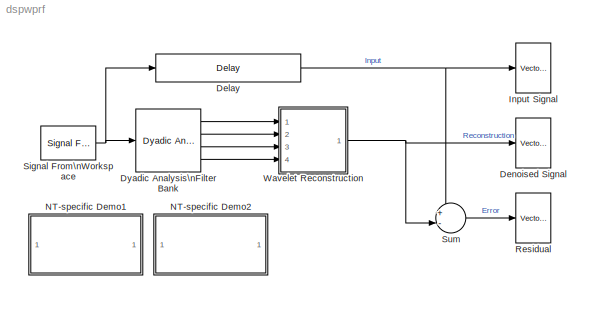
MODEL dspwprf
KIND model
CONFIG AbsTol = auto
CONFIG FixedStep = auto
CONFIG MaxStep = auto
CONFIG MinStep = auto
CONFIG PreLoadFcn = load dspwlets;
CONFIG RelTol = 1e-3
CONFIG Solver = FixedStepDiscrete
CONFIG SolverMode = Auto
CONFIG StartTime = 0.0
CONFIG StopTime = 1024
BLOCK [Reference] Delay  REF=dspsigops/Delay
  Ports = [1, 1]
  SourceBlock = dspsigops/Delay
  SourceType = Delay
  delay = 7*(length(lod)-1)
  dif_ic_for_ch = off
  dif_ic_for_dly = off
  dly_unit = Samples
  ic = 0
  ic_detail = on
  reset_popup = None
BLOCK [Reference] Denoised Signal  REF=dspsnks4/Vector\nScope
  AxisGrid = on
  AxisLegend = off
  AxisProperties = off
  AxisZoom = off
  DisplayProperties = off
  Domain = Time
  FigPos = [720 345 430 200]
  FrameNumber = on
  HorizSpan = 15
  InheritXIncr = on
  LineProperties = off
  Memory = off
  OpenScopeAtSimStart = on
  OpenScopeImmediately = off
  Ports = [1]
  ScopeProperties = on
  SourceBlock = dspsnks4/Vector\nScope
  SourceType = Vector Scope
  XIncr = 1
  XLabel = Samples
  XRange = [0...Fs/2]
  XUnits = Hertz
  YLabel = Amplitude
  YMax = 10
  YMin = -10
  YUnits = dB
BLOCK [Reference] Dyadic Analysis\nFilter Bank  REF=dspmlti4/Dyadic Analysis\nFilter Bank
  HPF = hid
  LPF = lod
  NumLevels = 3
  OrdRec_ordDec = [1 / 1]
  Order = 2
  Output = Multiple ports
  Ports = [1, 4]
  SourceBlock = dspmlti4/Dyadic Analysis\nFilter Bank
  SourceType = Dyadic Analysis Filter Bank
  Wname = User-defined
  tree = Asymmetric
BLOCK [Reference] Input Signal  REF=dspsnks4/Vector\nScope
  AxisGrid = on
  AxisLegend = off
  AxisProperties = off
  AxisZoom = off
  DisplayProperties = off
  Domain = Time
  FigPos = [720 590 430 200]
  FrameNumber = on
  HorizSpan = 15
  InheritXIncr = on
  LineProperties = off
  Memory = off
  OpenScopeAtSimStart = on
  OpenScopeImmediately = off
  Ports = [1]
  ScopeProperties = on
  SourceBlock = dspsnks4/Vector\nScope
  SourceType = Vector Scope
  XIncr = 1
  XLabel = Samples
  XRange = [0...Fs/2]
  XUnits = Hertz
  YLabel = Amplitude
  YMax = 10
  YMin = -10
  YUnits = dB
BLOCK [SubSystem] NT-specific Demo1
  MaskDisplay = disp('Sample-Based\\nDemo')
  MaskIconFrame = on
  MaskIconOpaque = on
  MaskIconRotate = none
  MaskIconUnits = autoscale
  MaskType = Sample-Based Demo
  OpenFcn = dspwpr
  Ports = []
  TreatAsAtomicUnit = off
BLOCK [SubSystem] NT-specific Demo2
  MaskDisplay = disp('Fixed-Point\\nDemo')
  MaskIconFrame = on
  MaskIconOpaque = on
  MaskIconRotate = none
  MaskIconUnits = autoscale
  MaskType = Fixed-Point Demo
  OpenFcn = dspwprfp
  Ports = []
  TreatAsAtomicUnit = off
BLOCK [Reference] Residual  REF=dspsnks4/Vector\nScope
  AxisGrid = on
  AxisLegend = off
  AxisProperties = off
  AxisZoom = off
  DisplayProperties = off
  Domain = Time
  FigPos = [720 100 430 200]
  FrameNumber = on
  HorizSpan = 15
  InheritXIncr = on
  LineProperties = off
  Memory = off
  OpenScopeAtSimStart = on
  OpenScopeImmediately = off
  Ports = [1]
  ScopeProperties = on
  SourceBlock = dspsnks4/Vector\nScope
  SourceType = Vector Scope
  XIncr = 1
  XLabel = Samples
  XRange = [0...Fs/2]
  XUnits = Hertz
  YLabel = Amplitude
  YMax = 2.37514789840845
  YMin = -3.00160967239117
  YUnits = dB
BLOCK [Reference] Signal From\nWorkspace  REF=dspsrcs4/Signal From\nWorkspace
  OutputAfterFinalValue = Setting to zero
  Ports = [0, 1]
  SourceBlock = dspsrcs4/Signal From\nWorkspace
  SourceType = Signal From Workspace
  Ts = ts
  X = noisdopp
  nsamps = 64
BLOCK [Sum] Sum
  IconShape = round
  Inputs = +-|
  Ports = [2, 1]
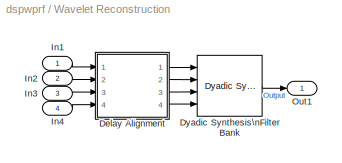
BLOCK [SubSystem] Wavelet Reconstruction
  Ports = [4, 1]
  TreatAsAtomicUnit = off
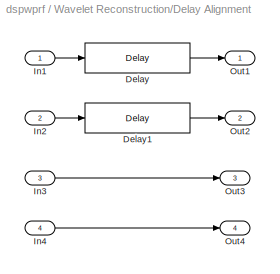
BLOCK [SubSystem] Wavelet Reconstruction/Delay Alignment
  Ports = [4, 4]
  TreatAsAtomicUnit = off
BLOCK [Reference] Wavelet Reconstruction/Delay Alignment/Delay  REF=dspsigops/Delay
  Ports = [1, 1]
  SourceBlock = dspsigops/Delay
  SourceType = Delay
  delay = 3*(length(lod)-1)
  dif_ic_for_ch = off
  dif_ic_for_dly = off
  dly_unit = Samples
  ic = 0
  ic_detail = on
  reset_popup = None
BLOCK [Reference] Wavelet Reconstruction/Delay Alignment/Delay1  REF=dspsigops/Delay
  Ports = [1, 1]
  SourceBlock = dspsigops/Delay
  SourceType = Delay
  delay = length(lod) - 1
  dif_ic_for_ch = off
  dif_ic_for_dly = off
  dly_unit = Samples
  ic = 0
  ic_detail = on
  reset_popup = None
BLOCK [Inport] Wavelet Reconstruction/Delay Alignment/In1
BLOCK [Inport] Wavelet Reconstruction/Delay Alignment/In2
  Port = 2
BLOCK [Inport] Wavelet Reconstruction/Delay Alignment/In3
  Port = 3
BLOCK [Inport] Wavelet Reconstruction/Delay Alignment/In4
  Port = 4
BLOCK [Outport] Wavelet Reconstruction/Delay Alignment/Out1
BLOCK [Outport] Wavelet Reconstruction/Delay Alignment/Out2
  Port = 2
BLOCK [Outport] Wavelet Reconstruction/Delay Alignment/Out3
  Port = 3
BLOCK [Outport] Wavelet Reconstruction/Delay Alignment/Out4
  Port = 4
BLOCK [Reference] Wavelet Reconstruction/Dyadic Synthesis\nFilter Bank  REF=dspmlti4/Dyadic Synthesis\nFilter Bank
  HPF = hir
  Input = Multiple ports
  LPF = lor
  NumLevels = 3
  OrdRec_ordDec = [1 / 1]
  Order = 2
  Ports = [4, 1]
  SourceBlock = dspmlti4/Dyadic Synthesis\nFilter Bank
  SourceType = Dyadic Synthesis Filter Bank
  Wname = User-defined
  tree = Asymmetric
BLOCK [Inport] Wavelet Reconstruction/In1
BLOCK [Inport] Wavelet Reconstruction/In2
  Port = 2
BLOCK [Inport] Wavelet Reconstruction/In3
  Port = 3
BLOCK [Inport] Wavelet Reconstruction/In4
  Port = 4
BLOCK [Outport] Wavelet Reconstruction/Out1
NET Delay:1 -> Input Signal:1, Sum:1
LINE Dyadic Analysis\nFilter Bank:1 -> Wavelet Reconstruction:1
LINE Dyadic Analysis\nFilter Bank:2 -> Wavelet Reconstruction:2
LINE Dyadic Analysis\nFilter Bank:3 -> Wavelet Reconstruction:3
LINE Dyadic Analysis\nFilter Bank:4 -> Wavelet Reconstruction:4
NET Signal From\nWorkspace:1 -> Delay:1, Dyadic Analysis\nFilter Bank:1
LINE Sum:1 -> Residual:1
LINE Wavelet Reconstruction/Delay Alignment/Delay1:1 -> Wavelet Reconstruction/Delay Alignment/Out2:1
LINE Wavelet Reconstruction/Delay Alignment/Delay:1 -> Wavelet Reconstruction/Delay Alignment/Out1:1
LINE Wavelet Reconstruction/Delay Alignment/In1:1 -> Wavelet Reconstruction/Delay Alignment/Delay:1
LINE Wavelet Reconstruction/Delay Alignment/In2:1 -> Wavelet Reconstruction/Delay Alignment/Delay1:1
LINE Wavelet Reconstruction/Delay Alignment/In3:1 -> Wavelet Reconstruction/Delay Alignment/Out3:1
LINE Wavelet Reconstruction/Delay Alignment/In4:1 -> Wavelet Reconstruction/Delay Alignment/Out4:1
LINE Wavelet Reconstruction/Delay Alignment:1 -> Wavelet Reconstruction/Dyadic Synthesis\nFilter Bank:1
LINE Wavelet Reconstruction/Delay Alignment:2 -> Wavelet Reconstruction/Dyadic Synthesis\nFilter Bank:2
LINE Wavelet Reconstruction/Delay Alignment:3 -> Wavelet Reconstruction/Dyadic Synthesis\nFilter Bank:3
LINE Wavelet Reconstruction/Delay Alignment:4 -> Wavelet Reconstruction/Dyadic Synthesis\nFilter Bank:4
LINE Wavelet Reconstruction/Dyadic Synthesis\nFilter Bank:1 -> Wavelet Reconstruction/Out1:1
LINE Wavelet Reconstruction/In1:1 -> Wavelet Reconstruction/Delay Alignment:1
LINE Wavelet Reconstruction/In2:1 -> Wavelet Reconstruction/Delay Alignment:2
LINE Wavelet Reconstruction/In3:1 -> Wavelet Reconstruction/Delay Alignment:3
LINE Wavelet Reconstruction/In4:1 -> Wavelet Reconstruction/Delay Alignment:4
NET Wavelet Reconstruction:1 -> Denoised Signal:1, Sum:2
note: NET lines group one-source signal fan-out (src -> all destinations, sorted); 1:1 wires keep LINE
